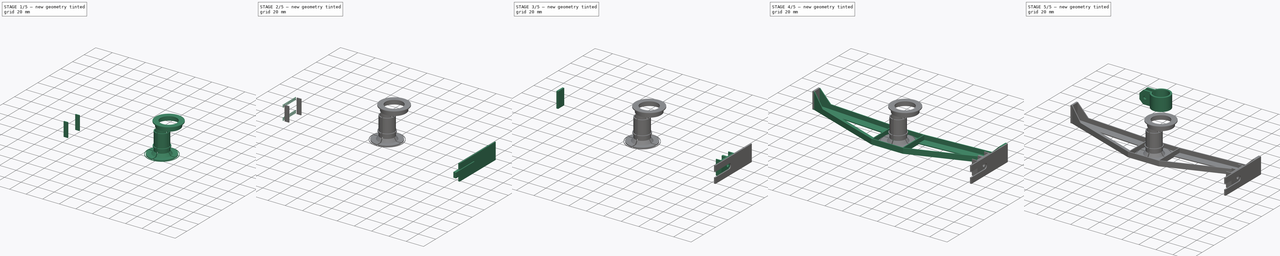
[diagram: build sequence overview — one tinted view per stage of 5, left to right]
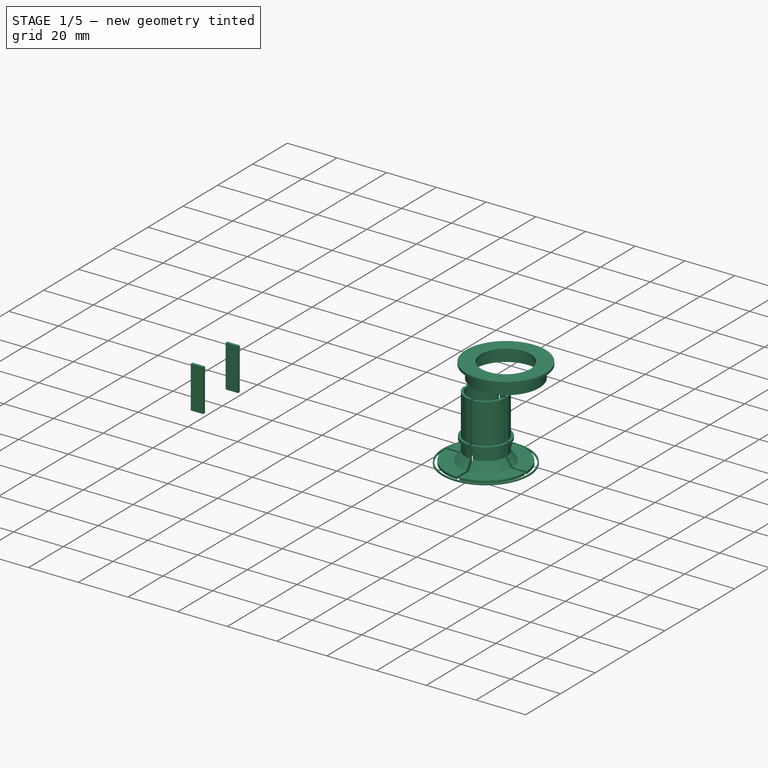
[diagram: stage 1 of 5 — iso view after this stage's code; geometry added in this stage tinted green]
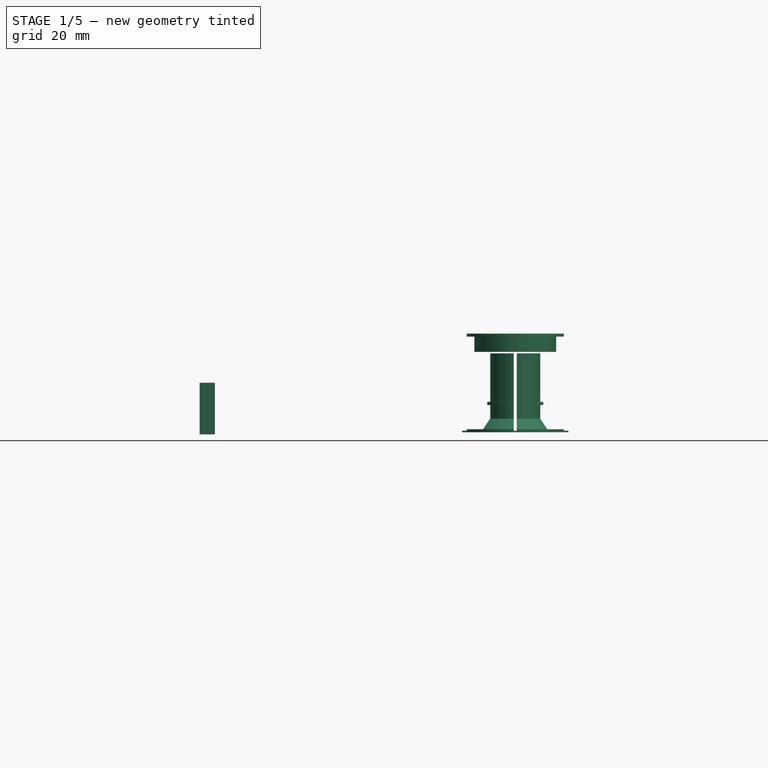
[diagram: stage 1 of 5 — front view after this stage's code; geometry added in this stage tinted green]
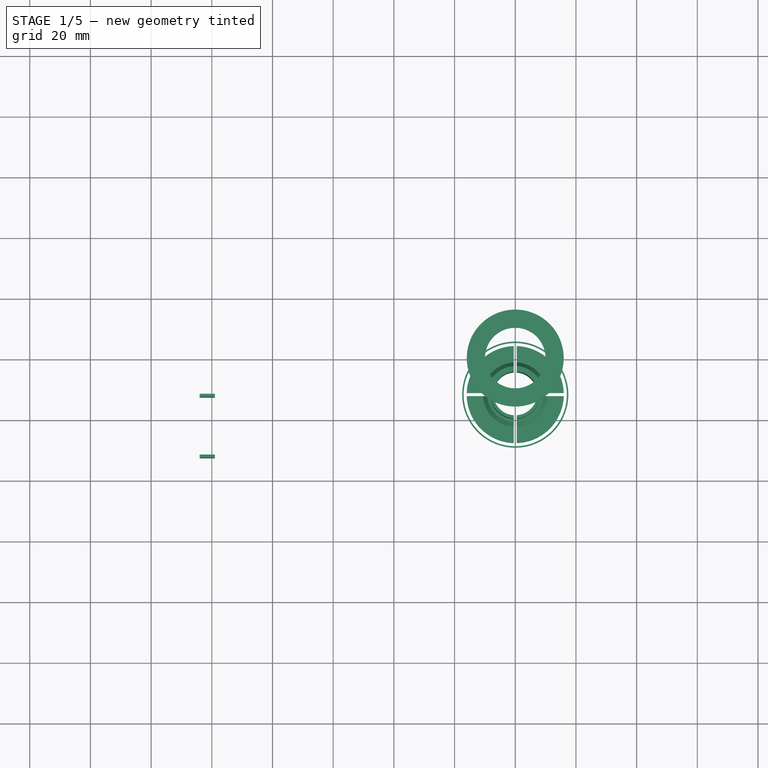
[diagram: stage 1 of 5 — top view after this stage's code; geometry added in this stage tinted green]
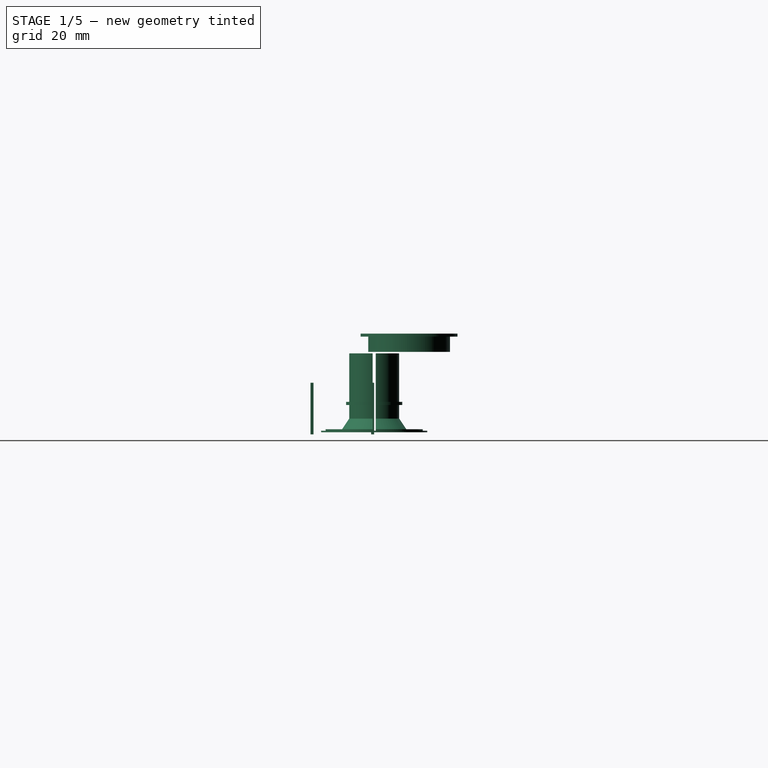
[diagram: stage 1 of 5 — right view after this stage's code; geometry added in this stage tinted green]
FCSTD DOCUMENT  (FreeCAD 0.19R24291 (Git))
Label: cam_static
License: All rights reserved
LicenseURL: http://en.wikipedia.org/wiki/All_rights_reserved
objects: Sketcher::SketchObject×19, Part::Extrusion×17, Part::Compound×6, PartDesign::FeatureBase×5, PartDesign::Body×5, Part::Mirroring×3, Part::Cut×3, Part::FeaturePython×3, Part::Cylinder×2, Part::MultiCommon×2, Part::Revolution×2, Spreadsheet::Sheet×1, Part::MultiFuse×1
note: 65 computed .brp shape members not serialized (recipe doc carries the construction recipe); baked Part::Feature solids carry a one-line shape summary decoded from their .brp

FEATURE [Sketcher::SketchObject] Sketch038
  FullyConstrained = true
  Placement = pos=(0,0,-9.2) rot=(0,0,1;0rad)
  sketch-geometry (8):
    g0: LineSegment StartX=-104 StartY=-11.5 StartZ=0 EndX=-99 EndY=-11.5 EndZ=0
    g1: LineSegment StartX=-99 StartY=-11.5 StartZ=0 EndX=-99 EndY=-12.5 EndZ=0
    g2: LineSegment StartX=-99 StartY=-12.5 StartZ=0 EndX=-104 EndY=-12.5 EndZ=0
    g3: LineSegment StartX=-104 StartY=-12.5 StartZ=0 EndX=-104 EndY=-11.5 EndZ=0
    g4: LineSegment StartX=-104 StartY=-32.5 StartZ=0 EndX=-99 EndY=-32.5 EndZ=0
    g5: LineSegment StartX=-99 StartY=-32.5 StartZ=0 EndX=-99 EndY=-31.5 EndZ=0
    g6: LineSegment StartX=-99 StartY=-31.5 StartZ=0 EndX=-104 EndY=-31.5 EndZ=0
    g7: LineSegment StartX=-104 StartY=-31.5 StartZ=0 EndX=-104 EndY=-32.5 EndZ=0
  constraints (24):
    c: Coincident(g0,g1)
    c: Coincident(g1,g2)
    c: Coincident(g2,g3)
    c: Coincident(g3,g0)
    c: Horizontal(g0)
    c: Horizontal(g2)
    c: Vertical(g1)
    c: Vertical(g3)
    c: Coincident(g4,g5)
    c: Coincident(g5,g6)
    c: Coincident(g6,g7)
    c: Coincident(g7,g4)
    c: Horizontal(g4)
    c: Horizontal(g6)
    c: Vertical(g5)
    c: Vertical(g7)
    c: DistanceY(g4) = -32.5
    c: DistanceY(g0) = -11.5
    c: DistanceX(g0) = -104
    c: Vertical(g6,g2)
    c: DistanceY(g1,g1) = 1
    c: DistanceY(g5,g5) = 1
    c: Vertical(g5,g1)
    c: DistanceX(g0,g0) = 5
FEATURE [Part::Extrusion] Extrude034
  Base = -> Sketch038
  Dir = (0,0,1)
  DirMode = 2
  FaceMakerClass = Part::FaceMakerBullseye
  LengthFwd = 0
  LengthRev = 17
  Solid = true
  Symmetric = false
FEATURE [Sketcher::SketchObject] Sketch012
  FullyConstrained = true
  Placement = pos=(0,0,-25.5) rot=(0,0,1;0rad)
  sketch-geometry (2):
    g0: Circle CenterX=0 CenterY=-11.5 CenterZ=0 NormalX=0 NormalY=0 NormalZ=1 AngleXU=0 Radius=17.5
    g1: Circle CenterX=0 CenterY=-11.5 CenterZ=0 NormalX=0 NormalY=0 NormalZ=1 AngleXU=0 Radius=17
  constraints (5):
    c: Radius(g1) = 17
    c: Radius(g0) = 17.5
    c: PointOnObject(g0,g-2)
    c: Coincident(g0,g1)
    c: DistanceY(g0) = -11.5
FEATURE [Part::Extrusion] Extrude035
  Base = -> Sketch012
  Dir = (0,0,1)
  DirMode = 2
  FaceMakerClass = Part::FaceMakerBullseye
  LengthFwd = 0.5
  LengthRev = 0
  Solid = true
  Symmetric = false
FEATURE [Sketcher::SketchObject] Sketch018
  FullyConstrained = true
  Placement = pos=(0,0,0) rot=(1,0,0;1.5708rad)
  sketch-geometry (11):
    g0: LineSegment StartX=7.25 StartY=26 StartZ=0 EndX=7.25 EndY=0 EndZ=0
    g1: LineSegment StartX=7.25 StartY=0 StartZ=0 EndX=16 EndY=0 EndZ=0
    g2: LineSegment StartX=16 StartY=0 StartZ=0 EndX=16 EndY=1 EndZ=0
    g3: LineSegment StartX=16 StartY=1 StartZ=0 EndX=10.6 EndY=1 EndZ=0
    g4: LineSegment StartX=10.6 StartY=1 StartZ=0 EndX=8.25 EndY=4.5 EndZ=0
    g5: LineSegment StartX=8.25 StartY=4.5 StartZ=0 EndX=8.25 EndY=9 EndZ=0
    g6: LineSegment StartX=8.25 StartY=9 StartZ=0 EndX=9.25 EndY=9 EndZ=0
    g7: LineSegment StartX=9.25 StartY=9 StartZ=0 EndX=9.25 EndY=10 EndZ=0
    g8: LineSegment StartX=9.25 StartY=10 StartZ=0 EndX=8.25 EndY=10 EndZ=0
    g9: LineSegment StartX=8.25 StartY=10 StartZ=0 EndX=8.25 EndY=26 EndZ=0
    g10: LineSegment StartX=8.25 StartY=26 StartZ=0 EndX=7.25 EndY=26 EndZ=0
  constraints (33):
    c: Vertical(g0)
    c: Coincident(g0,g1)
    c: Horizontal(g1)
    c: Coincident(g1,g2)
    c: Vertical(g2)
    c: Coincident(g2,g3)
    c: Horizontal(g3)
    c: Coincident(g3,g4)
    c: Coincident(g4,g5)
    c: Vertical(g5)
    c: Coincident(g5,g6)
    c: Horizontal(g6)
    c: Coincident(g6,g7)
    c: Vertical(g7)
    c: Coincident(g7,g8)
    c: Horizontal(g8)
    c: Coincident(g8,g9)
    c: Vertical(g9)
    c: Coincident(g9,g10)
    c: Coincident(g10,g0)
    c: Horizontal(g10)
    c: DistanceX(g0) = 7.25
    c: DistanceY(g0,g0) = 26
    c: DistanceX(g10,g10) = 1
    c: Vertical(g8,g5)
    c: DistanceY(g0,g5) = 9
    c: DistanceY(g2,g2) = 1
    c: DistanceX(g1) = 16
    c: DistanceX(g6,g6) = 1
    c: DistanceY(g7,g7) = 1
    c: DistanceX(g3) = 10.6
    c: DistanceY(g0,g4) = 4.5
    c: PointOnObject(g0,g-1)
FEATURE [Part::Revolution] Revolve
  Angle = 360
  Axis = (0,0,1)
  Base = (0,0,0)
  FaceMakerClass = Part::FaceMakerBullseye
  Solid = true
  Source = -> Sketch018
  Symmetric = false
FEATURE [Sketcher::SketchObject] Sketch039
  FullyConstrained = true
  Placement = pos=(0,0,-1) rot=(0,0,1;0rad)
  sketch-geometry (4):
    g0: LineSegment StartX=0.5 StartY=0.5 StartZ=0 EndX=18 EndY=0.5 EndZ=0
    g1: LineSegment StartX=18 StartY=0.5 StartZ=0 EndX=18 EndY=18 EndZ=0
    g2: LineSegment StartX=18 StartY=18 StartZ=0 EndX=0.5 EndY=18 EndZ=0
    g3: LineSegment StartX=0.5 StartY=18 StartZ=0 EndX=0.5 EndY=0.5 EndZ=0
  constraints (12):
    c: Coincident(g0,g1)
    c: Coincident(g1,g2)
    c: Coincident(g2,g3)
    c: Coincident(g3,g0)
    c: Horizontal(g0)
    c: Horizontal(g2)
    c: Vertical(g1)
    c: Vertical(g3)
    c: DistanceY(g0) = 0.5
    c: DistanceX(g0) = 0.5
    c: DistanceX(g0) = 18
    c: DistanceY(g2) = 18
FEATURE [Part::Extrusion] Extrude036
  Base = -> Sketch039
  Dir = (0,0,1)
  DirMode = 2
  FaceMakerClass = Part::FaceMakerBullseye
  LengthFwd = 28
  LengthRev = 0
  Solid = true
  Symmetric = false
FEATURE [Part::MultiCommon] Common  label="cf clamp"
  Shapes = -> [Extrude036,Revolve]
FEATURE [Sketcher::SketchObject] Sketch
  FullyConstrained = false
  Placement = pos=(0,0,0) rot=(1,0,0;1.5708rad)
  sketch-geometry (8):
    g0: LineSegment StartX=12.4749 StartY=1 StartZ=0 EndX=12.4749 EndY=6 EndZ=0
    g1: LineSegment StartX=12.4749 StartY=6 StartZ=0 EndX=9.97493 EndY=6 EndZ=0
    g2: LineSegment StartX=9.97493 StartY=6 StartZ=0 EndX=9.97493 EndY=7 EndZ=0
    g3: LineSegment StartX=9.97493 StartY=7 StartZ=0 EndX=15.9749 EndY=7 EndZ=0
    g4: LineSegment StartX=15.9749 StartY=7 StartZ=0 EndX=15.9749 EndY=6 EndZ=0
    g5: LineSegment StartX=15.9749 StartY=6 StartZ=0 EndX=13.4749 EndY=6 EndZ=0
    g6: LineSegment StartX=13.4749 StartY=6 StartZ=0 EndX=13.4749 EndY=1 EndZ=0
    g7: LineSegment StartX=13.4749 StartY=1 StartZ=0 EndX=12.4749 EndY=1 EndZ=0
  constraints (21):
    c: Vertical(g0)
    c: Coincident(g0,g1)
    c: Horizontal(g1)
    c: Coincident(g1,g2)
    c: Vertical(g2)
    c: Coincident(g2,g3)
    c: Horizontal(g3)
    c: Coincident(g3,g4)
    c: Vertical(g4)
    c: Coincident(g4,g5)
    c: Horizontal(g5)
    c: Coincident(g5,g6)
    c: Vertical(g6)
    c: Coincident(g6,g7)
    c: Coincident(g7,g0)
    c: Horizontal(g7)
    c: DistanceX(g7,g7) = 1
    c: DistanceX(g5,g5) = 2.5
    c: DistanceX(g1,g1) = 2.5
    c: DistanceY(g4,g4) = 1
    c: DistanceY(g6,g6) = 5
FEATURE [Part::Revolution] Revolve001  label="jig001"
  Angle = 360
  Axis = (0,0,1)
  Base = (0,0,0)
  FaceMakerClass = Part::FaceMakerBullseye
  Solid = true
  Source = -> Sketch
  Symmetric = false
FEATURE [PartDesign::FeatureBase] Clone012
  BaseFeature = -> Revolve001
FEATURE [PartDesign::Body] Body012  label="jig"
  BaseFeature = -> Revolve001
  Group = -> [Clone012]
  Origin = -> Origin012
  Placement = pos=(0,-11.5,-25.5) rot=(0,0,1;0rad)
  Tip = -> Clone012
FEATURE [PartDesign::FeatureBase] Clone
  BaseFeature = -> Common
FEATURE [PartDesign::Body] Body
  BaseFeature = -> Common
  Group = -> [Clone]
  Origin = -> Origin
  Tip = -> Clone
FEATURE [Part::FeaturePython] Array  label="cf mockup"  # Draft array (typed FeaturePython)
  Angle = 360
  ArrayType = 1
  Axis = (0,0,1)
  Base = -> Body
  Center = (0,0,0)
  Count = 4
  ExpandArray = false
  Fuse = false
  IntervalAxis = (0,0,0)
  IntervalX = (100,0,0)
  IntervalY = (0,100,0)
  IntervalZ = (0,0,100)
  NumberCircles = 3
  NumberPolar = 4
  NumberX = 2
  NumberY = 2
  NumberZ = 1
  Placement = pos=(0,-11.5,-25.5) rot=(0,0,1;0rad)
  PlacementList = 4 placements: [(0,0,0),(0,0,0),(0,0,0),(0,0,0)]
  RadialDistance = 50
  ScaleList = (4) [(1,1,1),(1,1,1),(1,1,1),(1,1,1)]
  Symmetry = 1
  TangentialDistance = 25
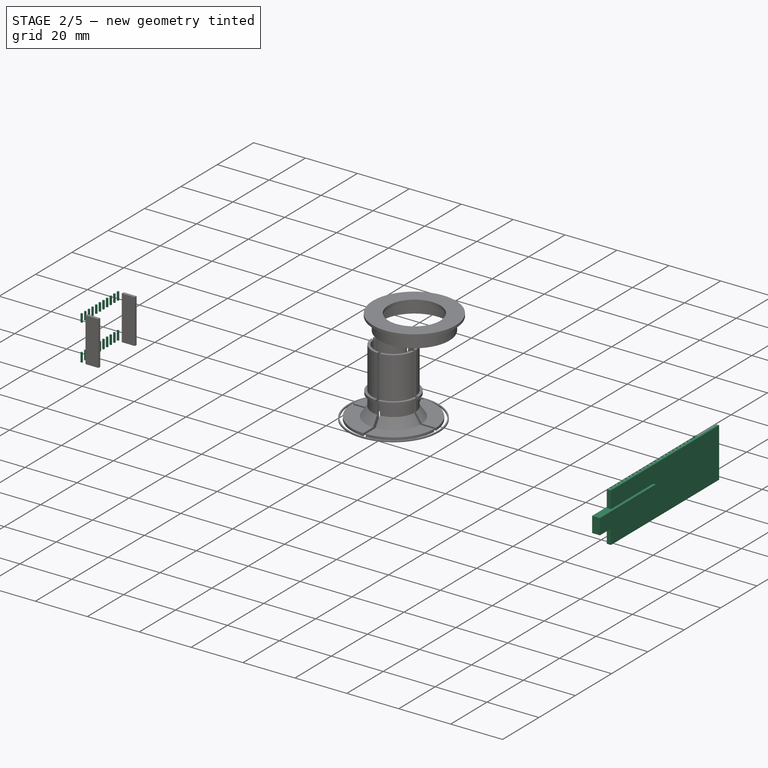
[diagram: stage 2 of 5 — iso view after this stage's code; geometry added in this stage tinted green]
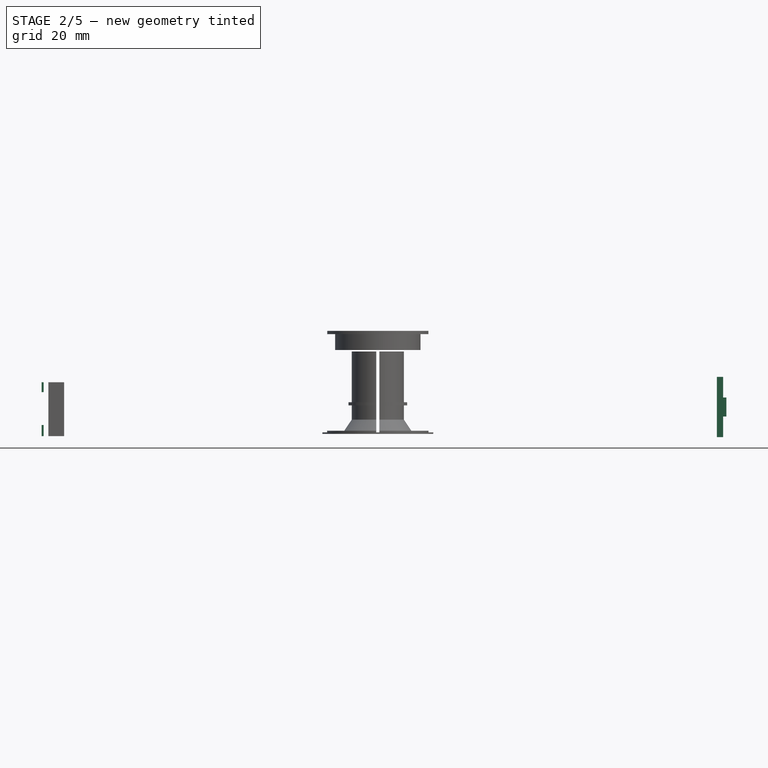
[diagram: stage 2 of 5 — front view after this stage's code; geometry added in this stage tinted green]
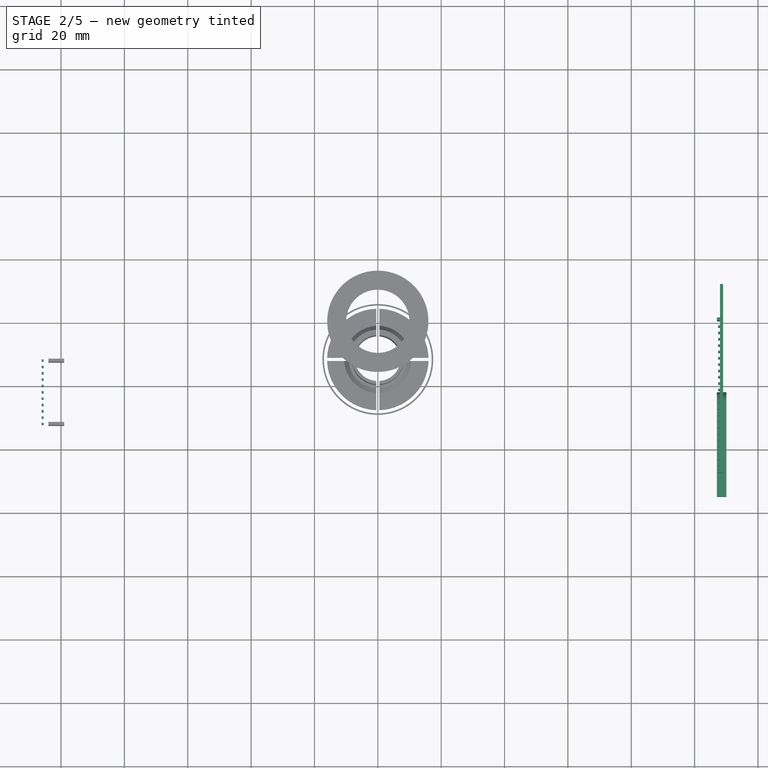
[diagram: stage 2 of 5 — top view after this stage's code; geometry added in this stage tinted green]
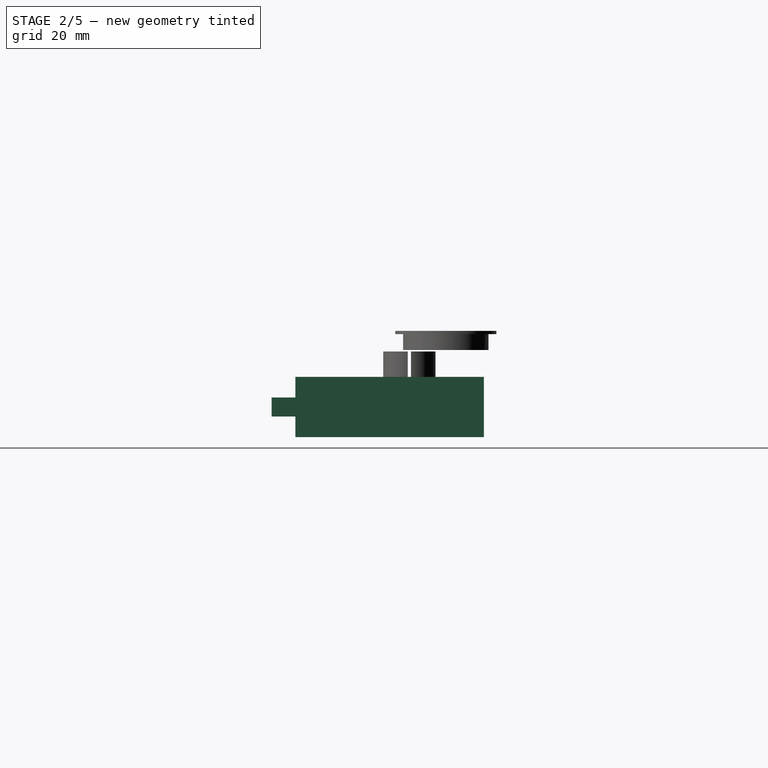
[diagram: stage 2 of 5 — right view after this stage's code; geometry added in this stage tinted green]
FEATURE [Sketcher::SketchObject] Sketch033
  FullyConstrained = true
  Placement = pos=(0,0,-7.5) rot=(0,0,1;0rad)
  sketch-geometry (8):
    g0: LineSegment StartX=108 StartY=12 StartZ=0 EndX=108 EndY=1.49 EndZ=0
    g1: LineSegment StartX=108 StartY=1.49 StartZ=0 EndX=107 EndY=1.49 EndZ=0
    g2: LineSegment StartX=107 StartY=1.49 StartZ=0 EndX=107 EndY=0.49 EndZ=0
    g3: LineSegment StartX=107 StartY=0.49 StartZ=0 EndX=108 EndY=0.49 EndZ=0
    g4: LineSegment StartX=108 StartY=0.49 StartZ=0 EndX=108 EndY=-47.5 EndZ=0
    g5: LineSegment StartX=108 StartY=-47.5 StartZ=0 EndX=109 EndY=-47.5 EndZ=0
    g6: LineSegment StartX=109 StartY=-47.5 StartZ=0 EndX=109 EndY=12 EndZ=0
    g7: LineSegment StartX=109 StartY=12 StartZ=0 EndX=108 EndY=12 EndZ=0
  constraints (24):
    c: Vertical(g0)
    c: Coincident(g0,g1)
    c: Horizontal(g1)
    c: Coincident(g1,g2)
    c: Vertical(g2)
    c: Coincident(g2,g3)
    c: Horizontal(g3)
    c: Coincident(g3,g4)
    c: Vertical(g4)
    c: Coincident(g4,g5)
    c: Horizontal(g5)
    c: Coincident(g5,g6)
    c: Vertical(g6)
    c: Coincident(g6,g7)
    c: Coincident(g7,g0)
    c: Horizontal(g7)
    c: DistanceX(g6) = 109
    c: DistanceX(g7,g7) = 1
    c: DistanceY(g6) = 12
    c: DistanceY(g0,g0) = 10.51
    c: DistanceY(g2,g2) = 1
    c: DistanceX(g3,g3) = 1
    c: Vertical(g3,g0)
    c: DistanceY(g6,g6) = 59.5
FEATURE [Part::Extrusion] Extrude029
  Base = -> Sketch033
  Dir = (0,0,1)
  DirMode = 2
  FaceMakerClass = Part::FaceMakerBullseye
  LengthFwd = 0
  LengthRev = 19
  Solid = true
  Symmetric = false
FEATURE [Sketcher::SketchObject] Sketch034
  FullyConstrained = true
  Placement = pos=(0,0,-7.5) rot=(0,0,1;0rad)
  sketch-geometry (4):
    g0: LineSegment StartX=108 StartY=-1 StartZ=0 EndX=107.4 EndY=-1 EndZ=0
    g1: LineSegment StartX=107.4 StartY=-1 StartZ=0 EndX=107.4 EndY=-1.5 EndZ=0
    g2: LineSegment StartX=107.4 StartY=-1.5 StartZ=0 EndX=108 EndY=-1.5 EndZ=0
    g3: LineSegment StartX=108 StartY=-1.5 StartZ=0 EndX=108 EndY=-1 EndZ=0
  constraints (12):
    c: Coincident(g0,g1)
    c: Coincident(g1,g2)
    c: Coincident(g2,g3)
    c: Coincident(g3,g0)
    c: Horizontal(g0)
    c: Horizontal(g2)
    c: Vertical(g1)
    c: Vertical(g3)
    c: DistanceX(g0) = 108
    c: DistanceX(g0,g0) = 0.6
    c: DistanceY(g3,g3) = 0.5
    c: DistanceY(g0) = -1
FEATURE [Part::Extrusion] Extrude030
  Base = -> Sketch034
  Dir = (0,0,1)
  DirMode = 2
  FaceMakerClass = Part::FaceMakerBullseye
  LengthFwd = 0
  LengthRev = 19
  Solid = true
  Symmetric = false
FEATURE [Part::FeaturePython] Array002  # Draft array (typed FeaturePython)
  Angle = 360
  ArrayType = 0
  Axis = (0,0,1)
  Base = -> Extrude030
  Center = (0,0,0)
  Count = 24
  ExpandArray = false
  Fuse = false
  IntervalAxis = (0,0,0)
  IntervalX = (100,0,0)
  IntervalY = (0,-2,0)
  IntervalZ = (0,0,100)
  NumberCircles = 3
  NumberPolar = 5
  NumberX = 1
  NumberY = 24
  NumberZ = 1
  PlacementList = 24 placements: arithmetic series from (0,0,0) step (0,-2,0) to (0,-46,0)
  RadialDistance = 50
  ScaleList = (24) [(1,1,1),(1,1,1),(1,1,1),(1,1,1),(1,1,1),(1,1,1),(1,1,1),(1,1,1),(1,1,1),(1,1,1),(1,1,1),(1,1,1),(1,1,1),(1,1,1),(1,1,1),(1,1,1),(1,1,1),(1,1,1),+6 more]
  Symmetry = 1
  TangentialDistance = 25
FEATURE [Part::Compound] Compound009
  Links = -> [Array002,Extrude029]
FEATURE [Sketcher::SketchObject] Sketch035
  FullyConstrained = true
  Placement = pos=(110,0,0) rot=(0.57735,0.57735,0.57735;2.0944rad)
  sketch-geometry (4):
    g0: ArcOfCircle CenterX=-25 CenterY=-17 CenterZ=0 NormalX=0 NormalY=0 NormalZ=1 AngleXU=0 Radius=3 StartAngle=4.71239 EndAngle=7.85398
    g1: LineSegment StartX=-55 StartY=-20 StartZ=0 EndX=-25 EndY=-20 EndZ=0
    g2: LineSegment StartX=-55 StartY=-14 StartZ=0 EndX=-25 EndY=-14 EndZ=0
    g3: LineSegment StartX=-55 StartY=-14 StartZ=0 EndX=-55 EndY=-20 EndZ=0
  constraints (13):
    c: Vertical(g0,g0)
    c: Vertical(g0,g0)
    c: Radius(g0) = 3
    c: DistanceY(g0) = -17
    c: Coincident(g1,g0)
    c: Horizontal(g1)
    c: Coincident(g2,g0)
    c: Horizontal(g2)
    c: DistanceX(g0) = -25
    c: DistanceX(g2) = -55
    c: Coincident(g3,g2)
    c: Coincident(g3,g1)
    c: Vertical(g3)
FEATURE [Part::Extrusion] Extrude031  label="side fork002"
  Base = -> Sketch035
  Dir = (1,-2e-16,2e-16)
  DirMode = 2
  FaceMakerClass = Part::FaceMakerBullseye
  LengthFwd = 0
  LengthRev = 3
  Solid = true
  Symmetric = false
FEATURE [Sketcher::SketchObject] Sketch036
  FullyConstrained = true
  Placement = pos=(0,0,-9.2) rot=(0,0,1;0rad)
  sketch-geometry (4):
    g0: LineSegment StartX=-105.5 StartY=-11.75 StartZ=0 EndX=-106.1 EndY=-11.75 EndZ=0
    g1: LineSegment StartX=-106.1 StartY=-11.75 StartZ=0 EndX=-106.1 EndY=-12.25 EndZ=0
    g2: LineSegment StartX=-106.1 StartY=-12.25 StartZ=0 EndX=-105.5 EndY=-12.25 EndZ=0
    g3: LineSegment StartX=-105.5 StartY=-12.25 StartZ=0 EndX=-105.5 EndY=-11.75 EndZ=0
  constraints (12):
    c: Coincident(g0,g1)
    c: Coincident(g1,g2)
    c: Coincident(g2,g3)
    c: Coincident(g3,g0)
    c: Horizontal(g0)
    c: Horizontal(g2)
    c: Vertical(g1)
    c: Vertical(g3)
    c: DistanceX(g0,g0) = 0.6
    c: DistanceY(g3,g3) = 0.5
    c: DistanceX(g0) = -105.5
    c: DistanceY(g0) = -11.75
FEATURE [Part::Extrusion] Extrude032
  Base = -> Sketch036
  Dir = (0,0,1)
  DirMode = 2
  FaceMakerClass = Part::FaceMakerBullseye
  LengthFwd = 0
  LengthRev = 17
  Solid = true
  Symmetric = false
FEATURE [Part::FeaturePython] Array003  # Draft array (typed FeaturePython)
  Angle = 360
  ArrayType = 0
  Axis = (0,0,1)
  Base = -> Extrude032
  Center = (0,0,0)
  Count = 11
  ExpandArray = false
  Fuse = false
  IntervalAxis = (0,0,0)
  IntervalX = (100,0,0)
  IntervalY = (0,-2,0)
  IntervalZ = (0,0,100)
  NumberCircles = 3
  NumberPolar = 5
  NumberX = 1
  NumberY = 11
  NumberZ = 1
  PlacementList = 11 placements: arithmetic series from (0,0,0) step (0,-2,0) to (0,-20,0)
  RadialDistance = 50
  ScaleList = (11) [(1,1,1),(1,1,1),(1,1,1),(1,1,1),(1,1,1),(1,1,1),(1,1,1),(1,1,1),(1,1,1),(1,1,1),(1,1,1)]
  Symmetry = 1
  TangentialDistance = 25
FEATURE [Sketcher::SketchObject] Sketch037
  FullyConstrained = true
  Placement = pos=(-107.5,-22,-15) rot=(0.57735,-0.57735,-0.57735;2.0944rad)
  sketch-geometry (4):
    g0: LineSegment StartX=-12 StartY=2.7 StartZ=0 EndX=12 EndY=2.7 EndZ=0
    g1: LineSegment StartX=12 StartY=2.7 StartZ=0 EndX=12 EndY=-7.7 EndZ=0
    g2: LineSegment StartX=12 StartY=-7.7 StartZ=0 EndX=-12 EndY=-7.7 EndZ=0
    g3: LineSegment StartX=-12 StartY=-7.7 StartZ=0 EndX=-12 EndY=2.7 EndZ=0
  constraints (12):
    c: Coincident(g0,g1)
    c: Coincident(g1,g2)
    c: Coincident(g2,g3)
    c: Coincident(g3,g0)
    c: Horizontal(g0)
    c: Horizontal(g2)
    c: Vertical(g1)
    c: Vertical(g3)
    c: DistanceY(g1) = -7.7
    c: DistanceY(g0) = 2.7
    c: DistanceX(g0) = 12
    c: DistanceX(g0) = -12
FEATURE [Part::Extrusion] Extrude033
  Base = -> Sketch037
  Dir = (-1,-7e-16,7e-16)
  DirMode = 2
  FaceMakerClass = Part::FaceMakerBullseye
  LengthFwd = 0
  LengthRev = 3.5
  Solid = true
  Symmetric = false
FEATURE [Part::Cut] Cut005
  Base = -> Array003
  Tool = -> Extrude033
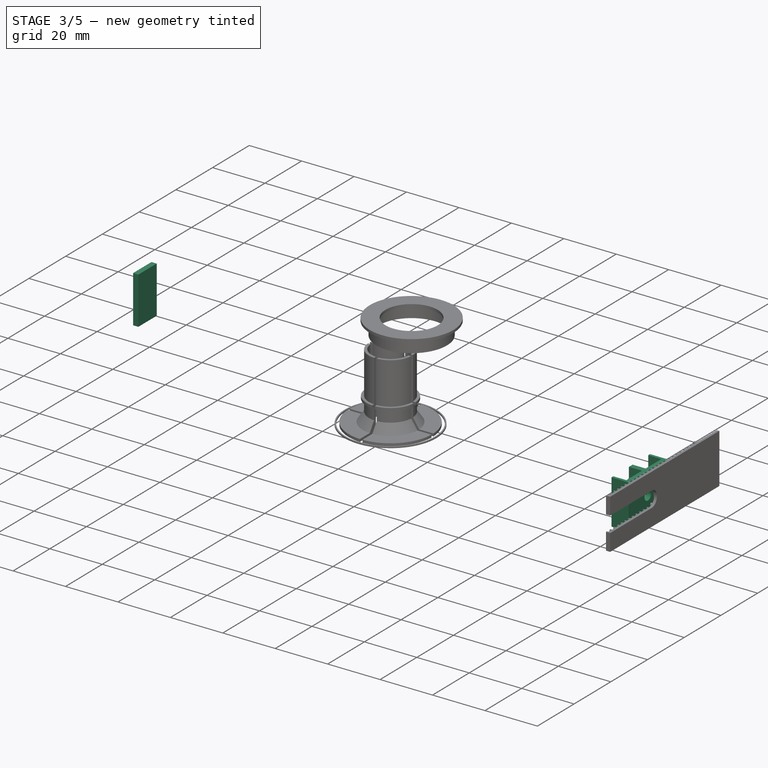
[diagram: stage 3 of 5 — iso view after this stage's code; geometry added in this stage tinted green]
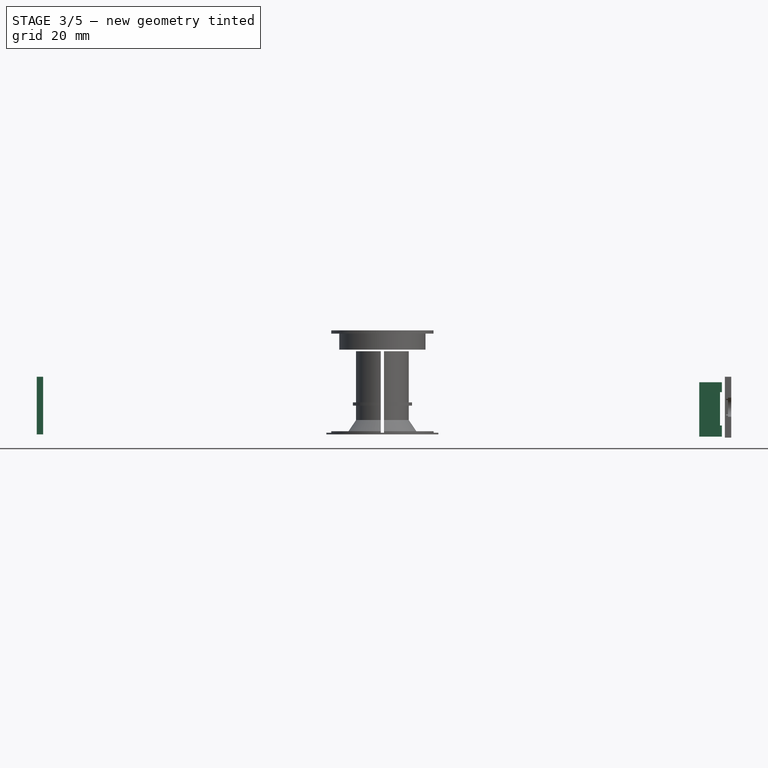
[diagram: stage 3 of 5 — front view after this stage's code; geometry added in this stage tinted green]
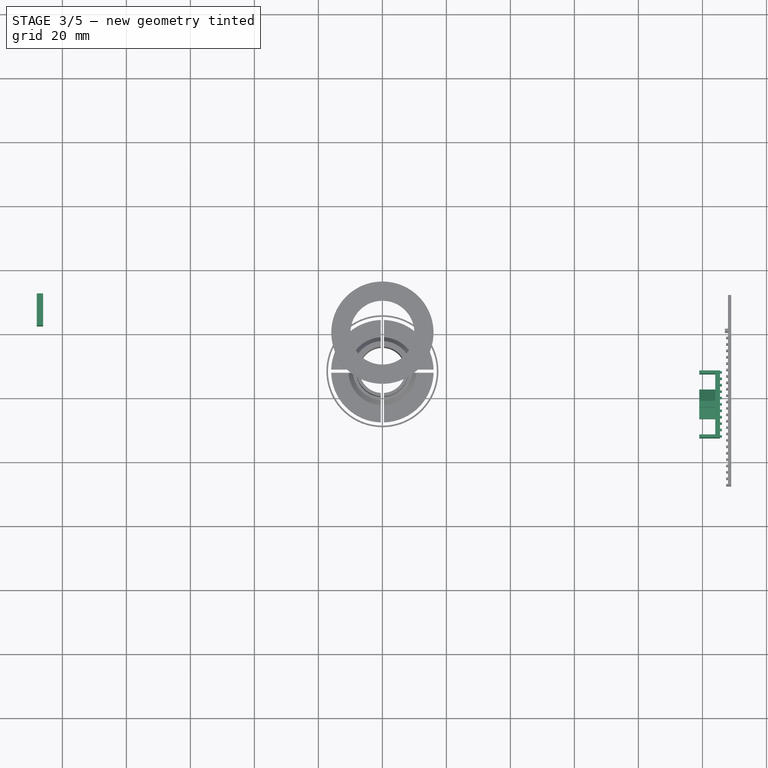
[diagram: stage 3 of 5 — top view after this stage's code; geometry added in this stage tinted green]
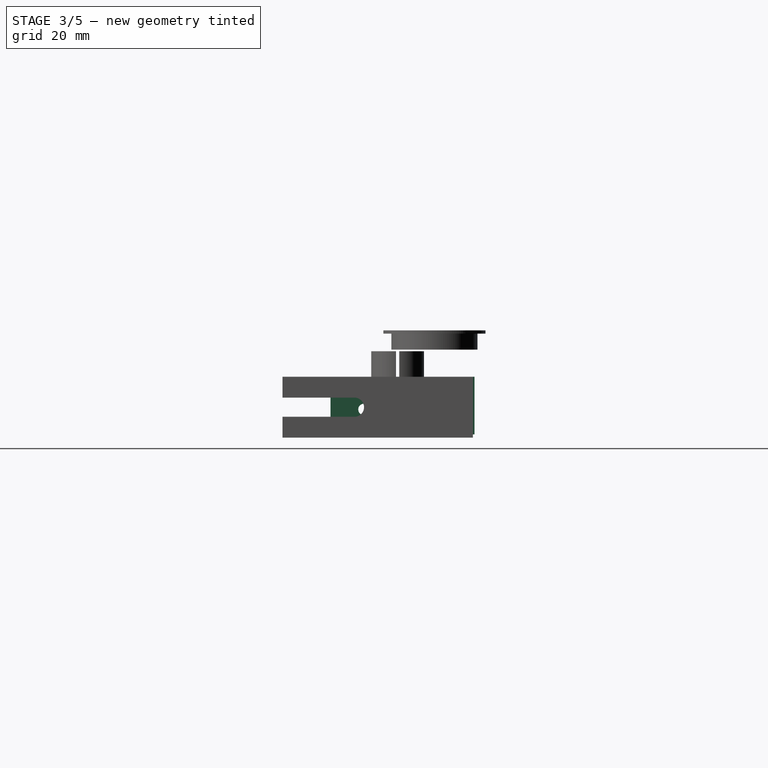
[diagram: stage 3 of 5 — right view after this stage's code; geometry added in this stage tinted green]
FEATURE [Sketcher::SketchObject] Sketch027
  FullyConstrained = true
  Placement = pos=(-104,-22,-17.7) rot=(0.57735,-0.57735,-0.57735;2.0944rad)
  expr: Constraints[37] = Spreadsheet.r3_4_40 + 1.5
  expr: Constraints[36] = Spreadsheet.r3_4_40
  sketch-geometry (14):
    g0: LineSegment StartX=3.2909 StartY=-1.9 StartZ=0 EndX=3.2909 EndY=1.9 EndZ=0
    g1: LineSegment StartX=3.2909 StartY=1.9 StartZ=0 EndX=4e-16 EndY=3.8 EndZ=0
    g2: LineSegment StartX=4e-16 StartY=3.8 StartZ=0 EndX=-3.2909 EndY=1.9 EndZ=0
    g3: LineSegment StartX=-3.2909 StartY=1.9 StartZ=0 EndX=-3.2909 EndY=-1.9 EndZ=0
    g4: LineSegment StartX=-3.2909 StartY=-1.9 StartZ=0 EndX=0 EndY=-3.8 EndZ=0
    g5: LineSegment StartX=0 StartY=-3.8 StartZ=0 EndX=3.2909 EndY=-1.9 EndZ=0
    g6: Circle CenterX=0 CenterY=0 CenterZ=0 NormalX=0 NormalY=0 NormalZ=1 AngleXU=0 Radius=3.8
    g7: LineSegment StartX=4.58993 StartY=-2.65 StartZ=0 EndX=4.58993 EndY=2.65 EndZ=0
    g8: LineSegment StartX=4.58993 StartY=2.65 StartZ=0 EndX=9e-16 EndY=5.3 EndZ=0
    g9: LineSegment StartX=9e-16 StartY=5.3 StartZ=0 EndX=-4.58993 EndY=2.65 EndZ=0
    g10: LineSegment StartX=-4.58993 StartY=2.65 StartZ=0 EndX=-4.58993 EndY=-2.65 EndZ=0
    g11: LineSegment StartX=-4.58993 StartY=-2.65 StartZ=0 EndX=0 EndY=-5.3 EndZ=0
    g12: LineSegment StartX=0 StartY=-5.3 StartZ=0 EndX=4.58993 EndY=-2.65 EndZ=0
    g13: Circle CenterX=0 CenterY=0 CenterZ=0 NormalX=0 NormalY=0 NormalZ=1 AngleXU=0 Radius=5.3
  constraints (32):
    c: Coincident(g0,g1)
    c: Coincident(g1,g2)
    c: Coincident(g2,g3)
    c: Coincident(g3,g4)
    c: Coincident(g4,g5)
    c: Coincident(g5,g0)
    c: Equal(g0, g1-g5) x5
    c: PointOnObject(g0,g6)
    c: PointOnObject(g1,g6)
    c: PointOnObject(g2,g6)
    c: PointOnObject(g3,g6)
    c: PointOnObject(g4,g6)
    c: PointOnObject(g5,g6)
    c: Coincident(g6,g-1)
    c: Coincident(g7,g8)
    c: Coincident(g8,g9)
    c: Coincident(g9,g10)
    c: Coincident(g10,g11)
    c: Coincident(g11,g12)
    c: Coincident(g12,g7)
    c: Equal(g7, g8-g12) x5
    c: PointOnObject(g7,g13)
    c: PointOnObject(g8,g13)
    c: PointOnObject(g9,g13)
    c: PointOnObject(g10,g13)
    c: PointOnObject(g11,g13)
    c: PointOnObject(g12,g13)
    c: Coincident(g13,g-1)
    c: Radius(g6) = 3.8
    c: Radius(g13) = 5.3
    c: Vertical(g7)
    c: Vertical(g0)
FEATURE [Part::Extrusion] Extrude023
  Base = -> Sketch027
  Dir = (-1,2e-16,-2e-16)
  DirMode = 2
  FaceMakerClass = Part::FaceMakerBullseye
  LengthFwd = 0
  LengthRev = 5
  Solid = true
  Symmetric = false
FEATURE [Sketcher::SketchObject] Sketch028
  FullyConstrained = true
  Placement = pos=(-105.5,-22,-15) rot=(0.57735,-0.57735,-0.57735;2.0944rad)
  expr: Constraints[1] = Spreadsheet.r_4_40
  sketch-geometry (5):
    g0: Circle CenterX=0 CenterY=-2.7 CenterZ=0 NormalX=0 NormalY=0 NormalZ=1 AngleXU=0 Radius=1.8
    g1: LineSegment StartX=-10.5 StartY=5.8 StartZ=0 EndX=10.5 EndY=5.8 EndZ=0
    g2: LineSegment StartX=10.5 StartY=5.8 StartZ=0 EndX=10.5 EndY=-11.2 EndZ=0
    g3: LineSegment StartX=10.5 StartY=-11.2 StartZ=0 EndX=-10.5 EndY=-11.2 EndZ=0
    g4: LineSegment StartX=-10.5 StartY=-11.2 StartZ=0 EndX=-10.5 EndY=5.8 EndZ=0
  constraints (15):
    c: PointOnObject(g0,g-2)
    c: Radius(g0) = 1.8
    c: Coincident(g1,g2)
    c: Coincident(g2,g3)
    c: Coincident(g3,g4)
    c: Coincident(g4,g1)
    c: Horizontal(g1)
    c: Horizontal(g3)
    c: Vertical(g2)
    c: Vertical(g4)
    c: DistanceX(g1) = 10.5
    c: DistanceX(g1,g1) = 21
    c: DistanceY(g0,g1) = 8.5
    c: DistanceY(g3,g0) = 8.5
    c: DistanceY(g0) = -2.7
FEATURE [Part::Extrusion] Extrude024
  Base = -> Sketch028
  Dir = (-1,-2e-16,2e-16)
  DirMode = 2
  FaceMakerClass = Part::FaceMakerBullseye
  LengthFwd = 0
  LengthRev = 1.5
  Solid = true
  Symmetric = false
FEATURE [Sketcher::SketchObject] Sketch030
  FullyConstrained = true
  Placement = pos=(0,-22,0) rot=(1,0,0;1.5708rad)
  sketch-geometry (8):
    g0: LineSegment StartX=-104 StartY=-26.2 StartZ=0 EndX=-104 EndY=-22 EndZ=0
    g1: LineSegment StartX=-104 StartY=-22 StartZ=0 EndX=-99 EndY=-22 EndZ=0
    g2: LineSegment StartX=-99 StartY=-22 StartZ=0 EndX=-99 EndY=-26.2 EndZ=0
    g3: LineSegment StartX=-99 StartY=-26.2 StartZ=0 EndX=-104 EndY=-26.2 EndZ=0
    g4: LineSegment StartX=-99 StartY=-13.5 StartZ=0 EndX=-104 EndY=-13.5 EndZ=0
    g5: LineSegment StartX=-104 StartY=-13.5 StartZ=0 EndX=-104 EndY=-9.2 EndZ=0
    g6: LineSegment StartX=-104 StartY=-9.2 StartZ=0 EndX=-99 EndY=-9.2 EndZ=0
    g7: LineSegment StartX=-99 StartY=-9.2 StartZ=0 EndX=-99 EndY=-13.5 EndZ=0
  constraints (24):
    c: Vertical(g0)
    c: Coincident(g0,g1)
    c: Horizontal(g1)
    c: Coincident(g1,g2)
    c: Vertical(g2)
    c: Coincident(g3,g0)
    c: Horizontal(g3)
    c: DistanceX(g1,g1) = 5
    c: DistanceX(g0) = -104
    c: Coincident(g2,g3)
    c: Coincident(g4,g5)
    c: Coincident(g5,g6)
    c: Coincident(g6,g7)
    c: Coincident(g7,g4)
    c: Horizontal(g4)
    c: Horizontal(g6)
    c: Vertical(g5)
    c: Vertical(g7)
    c: Vertical(g4,g0)
    c: Vertical(g1,g4)
    c: DistanceY(g6) = -9.2
    c: DistanceY(g0) = -22
    c: DistanceY(g0) = -26.2
    c: DistanceY(g4) = -13.5
FEATURE [Part::Extrusion] Extrude026
  Base = -> Sketch030
  Dir = (0,-1,2e-16)
  DirMode = 2
  FaceMakerClass = Part::FaceMakerBullseye
  LengthFwd = 1
  LengthRev = 1
  Solid = true
  Symmetric = false
FEATURE [Sketcher::SketchObject] Sketch032
  FullyConstrained = true
  Placement = pos=(0,0,-25.5) rot=(0,0,1;0rad)
  sketch-geometry (4):
    g0: LineSegment StartX=-108 StartY=12.5 StartZ=0 EndX=-108 EndY=2.5 EndZ=0
    g1: LineSegment StartX=-106 StartY=2.5 StartZ=0 EndX=-106 EndY=12.5 EndZ=0
    g2: LineSegment StartX=-106 StartY=12.5 StartZ=0 EndX=-108 EndY=12.5 EndZ=0
    g3: LineSegment StartX=-108 StartY=2.5 StartZ=0 EndX=-106 EndY=2.5 EndZ=0
  constraints (12):
    c: Vertical(g0)
    c: Vertical(g1)
    c: Coincident(g1,g2)
    c: Coincident(g2,g0)
    c: Horizontal(g2)
    c: DistanceY(g0) = 12.5
    c: DistanceX(g0) = -108
    c: DistanceY(g0,g0) = 10
    c: DistanceX(g2,g2) = 2
    c: Coincident(g3,g1)
    c: Horizontal(g3)
    c: Coincident(g0,g3)
FEATURE [Part::Extrusion] Extrude028
  Base = -> Sketch032
  Dir = (0,0,1)
  DirMode = 2
  FaceMakerClass = Part::FaceMakerBullseye
  LengthFwd = 18
  LengthRev = 0
  Solid = true
  Symmetric = false
FEATURE [Part::Cut] Cut004  label="side fork003"
  Base = -> Compound009
  Tool = -> Extrude031
FEATURE [Part::Compound] Compound007  label="track farstener"
  Links = -> [Extrude023,Extrude024,Extrude026,Cut005,Extrude034]
FEATURE [PartDesign::FeatureBase] Clone011
  BaseFeature = -> Compound007
FEATURE [PartDesign::Body] Body011
  BaseFeature = -> Compound007
  Group = -> [Clone011]
  Origin = -> Origin011
  Tip = -> Clone011
FEATURE [Part::Mirroring] Part__Mirroring011  label="track farstener001"
  Base = (0,0,0)
  Normal = (1,0,0)
  Source = -> Body011
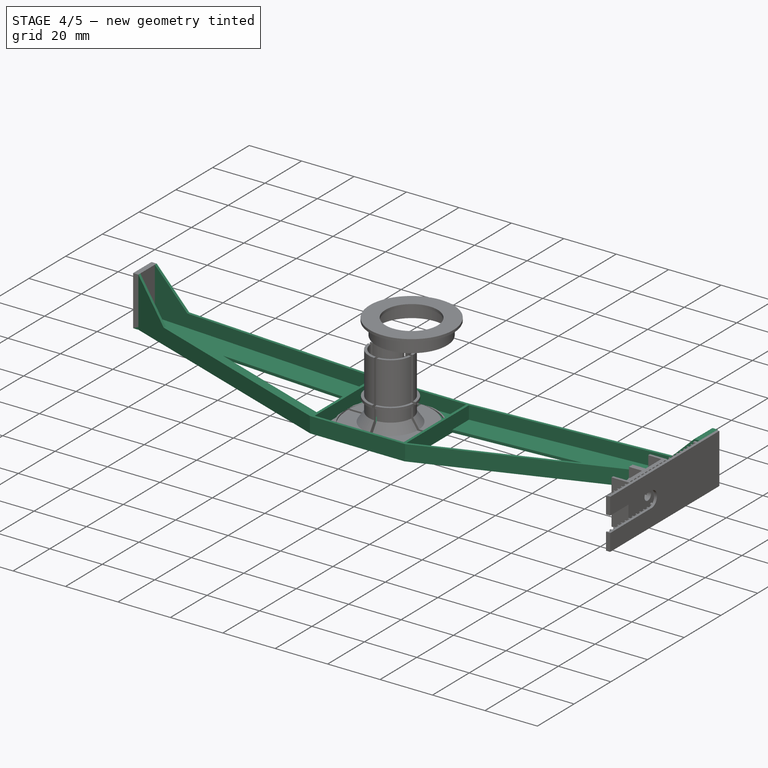
[diagram: stage 4 of 5 — iso view after this stage's code; geometry added in this stage tinted green]
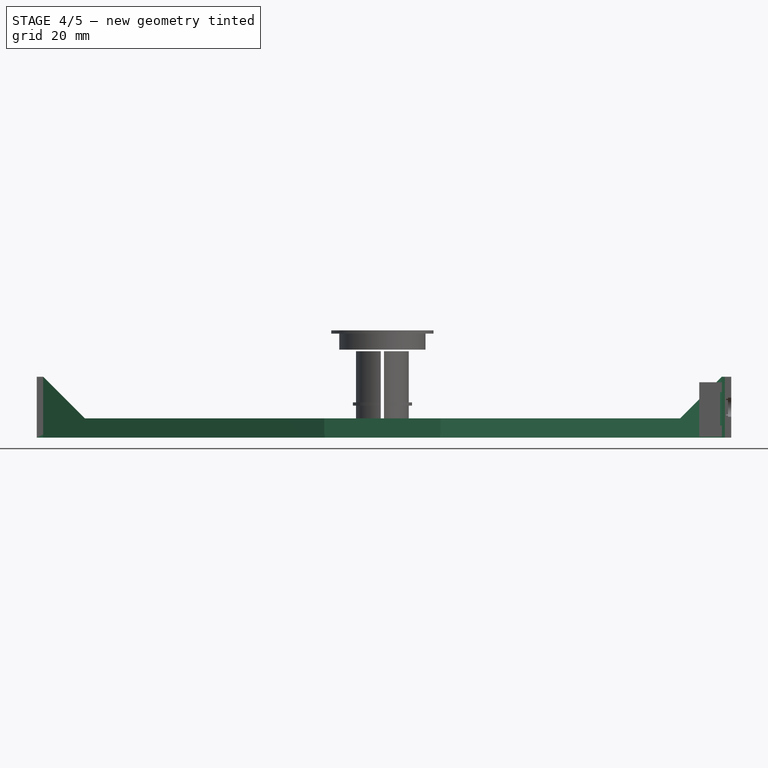
[diagram: stage 4 of 5 — front view after this stage's code; geometry added in this stage tinted green]
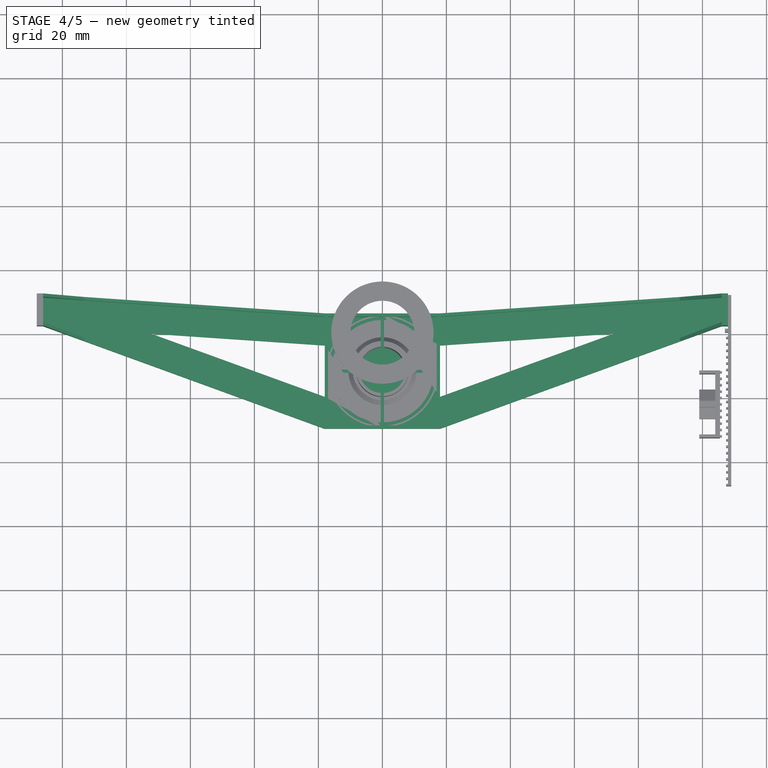
[diagram: stage 4 of 5 — top view after this stage's code; geometry added in this stage tinted green]
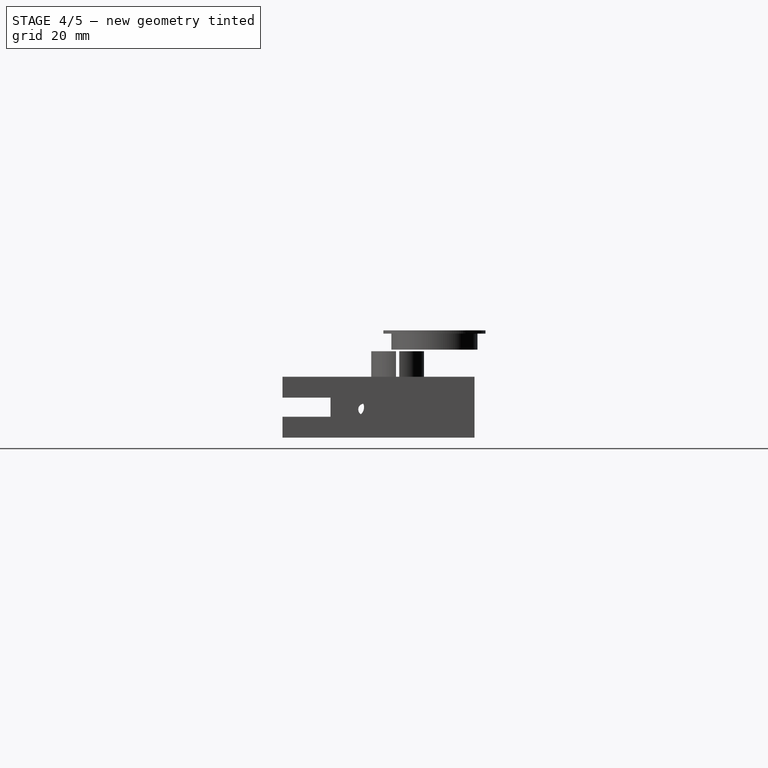
[diagram: stage 4 of 5 — right view after this stage's code; geometry added in this stage tinted green]
FEATURE [Sketcher::SketchObject] Sketch019
  FullyConstrained = true
  Placement = pos=(0,0,-26.5) rot=(0,0,1;0rad)
  sketch-geometry (11):
    g0: LineSegment StartX=0 StartY=-29.5 StartZ=0 EndX=-18 EndY=-29.5 EndZ=0
    g1: LineSegment StartX=-108 StartY=2.5 StartZ=0 EndX=-108 EndY=12.5 EndZ=0
    g2: LineSegment StartX=-72.1538 StartY=0.192308 StartZ=0 EndX=-18 EndY=-3.5 EndZ=0
    g3: LineSegment StartX=-18 StartY=-3.5 StartZ=0 EndX=-18 EndY=-19.5 EndZ=0
    g4: LineSegment StartX=-18 StartY=-19.5 StartZ=0 EndX=-72.1538 EndY=0.192308 EndZ=0
    g5: LineSegment StartX=0 StartY=6.5 StartZ=0 EndX=0 EndY=-29.5 EndZ=0
    g6: LineSegment StartX=-18 StartY=-29.5 StartZ=0 EndX=-106 EndY=2.5 EndZ=0
    g7: LineSegment StartX=-106 StartY=2.5 StartZ=0 EndX=-108 EndY=2.5 EndZ=0
    g8: LineSegment StartX=0 StartY=6.5 StartZ=0 EndX=-18 EndY=6.5 EndZ=0
    g9: LineSegment StartX=-18 StartY=6.5 StartZ=0 EndX=-106 EndY=12.5 EndZ=0
    g10: LineSegment StartX=-106 StartY=12.5 StartZ=0 EndX=-108 EndY=12.5 EndZ=0
  constraints (33):
    c: Horizontal(g0)
    c: Vertical(g1)
    c: Coincident(g2,g3)
    c: Vertical(g3)
    c: DistanceY(g1,g1) = 10
    c: DistanceX(g1) = -108
    c: Vertical(g3,g0)
    c: Coincident(g4,g3)
    c: Coincident(g4,g2)
    c: DistanceY(g0,g3) = 10
    c: PointOnObject(g5,g-2)
    c: Coincident(g5,g0)
    c: Vertical(g5)
    c: DistanceY(g0) = -29.5
    c: DistanceX(g2) = -18
    c: Coincident(g0,g6)
    c: Coincident(g6,g7)
    c: Coincident(g7,g1)
    c: Horizontal(g7)
    c: DistanceX(g7,g7) = 2
    c: Parallel(g6,g4)
    c: DistanceY(g1) = 12.5
    c: DistanceY(g5) = 6.5
    c: Coincident(g5,g8)
    c: Horizontal(g8)
    c: Coincident(g8,g9)
    c: Coincident(g9,g10)
    c: Coincident(g10,g1)
    c: Horizontal(g10)
    c: Vertical(g9,g6)
    c: Vertical(g8,g2)
    c: DistanceY(g2,g8) = 10
    c: Parallel(g2,g9)
FEATURE [Part::Extrusion] Extrude015
  Base = -> Sketch019
  Dir = (0,0,1)
  DirMode = 2
  FaceMakerClass = Part::FaceMakerBullseye
  LengthFwd = 1
  LengthRev = 0
  Solid = true
  Symmetric = false
FEATURE [Sketcher::SketchObject] Sketch020
  FullyConstrained = true
  Placement = pos=(0,0,-25.5) rot=(0,0,1;0rad)
  sketch-geometry (14):
    g0: LineSegment StartX=0 StartY=6.5 StartZ=0 EndX=0 EndY=5.5 EndZ=0
    g1: LineSegment StartX=-106 StartY=11.5 StartZ=0 EndX=-106 EndY=12.5 EndZ=0
    g2: LineSegment StartX=-18 StartY=-28.5 StartZ=0 EndX=-106 EndY=3.56431 EndZ=0
    g3: LineSegment StartX=-106 StartY=3.56431 StartZ=0 EndX=-106 EndY=2.5 EndZ=0
    g4: LineSegment StartX=-106 StartY=2.5 StartZ=0 EndX=-18.1765 EndY=-29.5 EndZ=0
    g5: LineSegment StartX=-18.1765 StartY=-29.5 StartZ=0 EndX=0 EndY=-29.5 EndZ=0
    g6: LineSegment StartX=0 StartY=-29.5 StartZ=0 EndX=0 EndY=-28.5 EndZ=0
    g7: LineSegment StartX=-18 StartY=5.5 StartZ=0 EndX=-18 EndY=-28.5 EndZ=0
    g8: LineSegment StartX=0 StartY=5.5 StartZ=0 EndX=-17 EndY=5.5 EndZ=0
    g9: LineSegment StartX=-17 StartY=5.5 StartZ=0 EndX=-17 EndY=-28.5 EndZ=0
    g10: LineSegment StartX=-17 StartY=-28.5 StartZ=0 EndX=0 EndY=-28.5 EndZ=0
    g11: LineSegment StartX=0 StartY=6.5 StartZ=0 EndX=-18 EndY=6.5 EndZ=0
    g12: LineSegment StartX=-18 StartY=6.5 StartZ=0 EndX=-106 EndY=12.5 EndZ=0
    g13: LineSegment StartX=-106 StartY=11.5 StartZ=0 EndX=-18 EndY=5.5 EndZ=0
  constraints (42):
    c: PointOnObject(g0,g-2)
    c: Vertical(g0)
    c: Vertical(g1)
    c: DistanceY(g0,g0) = 1
    c: DistanceY(g0) = 6.5
    c: PointOnObject(g6,g-2)
    c: Coincident(g2,g3)
    c: Vertical(g3)
    c: Coincident(g3,g4)
    c: Coincident(g4,g5)
    c: Horizontal(g5)
    c: Coincident(g5,g6)
    c: Vertical(g6)
    c: Coincident(g7,g2)
    c: Vertical(g7)
    c: Coincident(g0,g8)
    c: Horizontal(g8)
    c: Coincident(g8,g9)
    c: Vertical(g9)
    c: Coincident(g9,g10)
    c: Coincident(g10,g6)
    c: Horizontal(g10)
    c: Distance(g2,g4) = 1
    c: DistanceY(g6,g6) = 1
    c: DistanceY(g5) = -29.5
    c: Horizontal(g8,g7)
    c: DistanceX(g9) = -17
    c: DistanceX(g2,g9) = 1
    c: DistanceX(g1) = -106
    c: Vertical(g1,g2)
    c: Parallel(g4,g2)
    c: Horizontal(g9,g2)
    c: DistanceY(g3,g1) = 10
    c: DistanceY(g1) = 12.5
    c: DistanceY(g1,g1) = 1
    c: Coincident(g0,g11)
    c: Horizontal(g11)
    c: Coincident(g11,g12)
    c: Coincident(g1,g12)
    c: Coincident(g13,g1)
    c: Coincident(g13,g7)
    c: Vertical(g11,g7)
FEATURE [Part::Extrusion] Extrude016
  Base = -> Sketch020
  Dir = (0,0,1)
  DirMode = 2
  FaceMakerClass = Part::FaceMakerBullseye
  LengthFwd = 26.5
  LengthRev = 0
  Solid = true
  Symmetric = false
FEATURE [Sketcher::SketchObject] Sketch022
  FullyConstrained = true
  Placement = pos=(0,-30,0) rot=(1,0,0;1.5708rad)
  sketch-geometry (5):
    g0: LineSegment StartX=0 StartY=4 StartZ=0 EndX=-106 EndY=4 EndZ=0
    g1: LineSegment StartX=-106 StartY=4 StartZ=0 EndX=-106 EndY=-7.5 EndZ=0
    g2: LineSegment StartX=-93 StartY=-20.5 StartZ=0 EndX=0 EndY=-20.5 EndZ=0
    g3: LineSegment StartX=0 StartY=-20.5 StartZ=0 EndX=0 EndY=4 EndZ=0
    g4: LineSegment StartX=-106 StartY=-7.5 StartZ=0 EndX=-93 EndY=-20.5 EndZ=0
  constraints (15):
    c: Coincident(g0,g1)
    c: Coincident(g3,g0)
    c: Horizontal(g0)
    c: Horizontal(g2)
    c: Vertical(g1)
    c: Vertical(g3)
    c: DistanceY(g0) = 4
    c: DistanceX(g0) = -106
    c: DistanceY(g2,g0) = 24.5
    c: Coincident(g4,g1)
    c: Coincident(g4,g2)
    c: Angle(g4,g2,g2) = 0.785398
    c: DistanceY(g1) = -7.5
    c: Coincident(g2,g3)
    c: PointOnObject(g2,g-2)
FEATURE [Part::Extrusion] Extrude018
  Base = -> Sketch022
  Dir = (0,-1,-2e-16)
  DirMode = 2
  FaceMakerClass = Part::FaceMakerBullseye
  LengthFwd = 0
  LengthRev = 50
  Solid = true
  Symmetric = false
FEATURE [Part::Compound] Compound004
  Links = -> [Extrude016]
FEATURE [Part::Cut] Cut003
  Base = -> Compound004
  Tool = -> Extrude018
FEATURE [Part::Compound] Compound005
  Links = -> [Cut003,Extrude015,Extrude028]
FEATURE [PartDesign::FeatureBase] Clone009
  BaseFeature = -> Compound005
FEATURE [PartDesign::Body] Body009
  BaseFeature = -> Compound005
  Group = -> [Clone009]
  Origin = -> Origin009
  Tip = -> Clone009
FEATURE [Part::Mirroring] Part__Mirroring009  label="Body009 (Mirror #9)"
  Base = (-1.90735e-06,-21.5,-11.75)
  Normal = (1,0,-1.19209e-07)
  Source = -> Body009
FEATURE [Part::Compound] Compound008  label="base"
  Links = -> [Part__Mirroring009,Compound005,Extrude035]
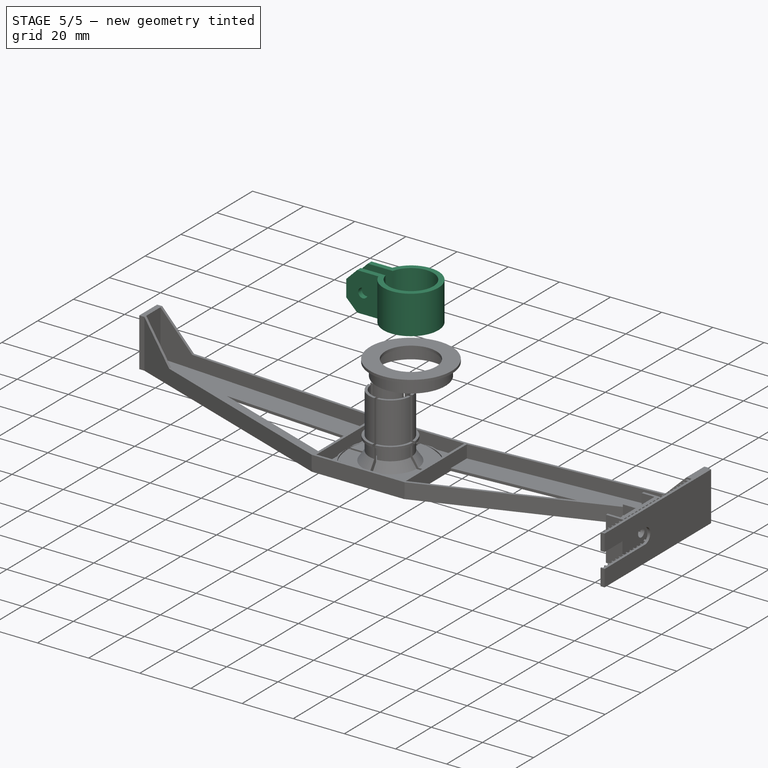
[diagram: stage 5 of 5 — iso view after this stage's code; geometry added in this stage tinted green]
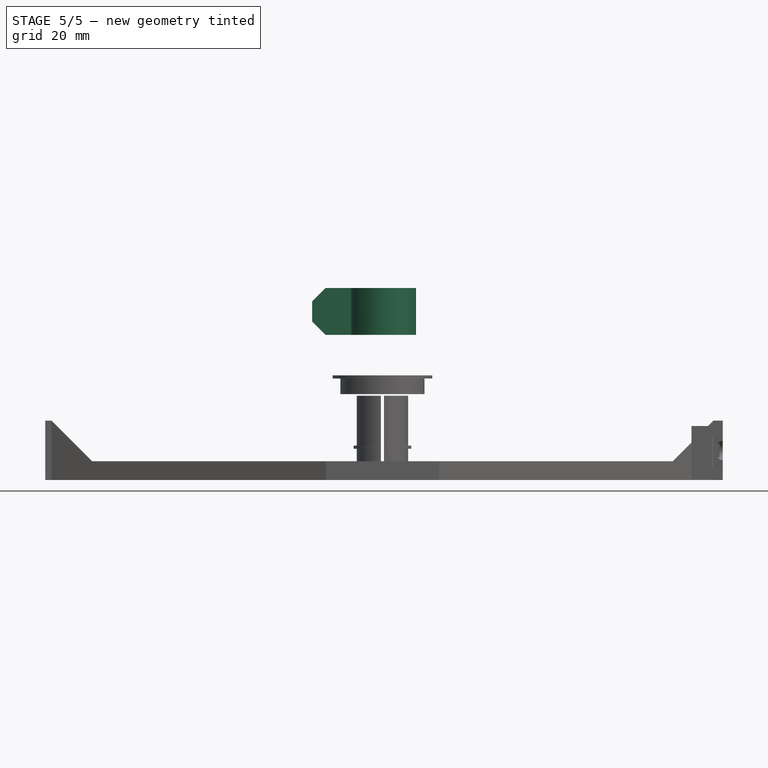
[diagram: stage 5 of 5 — front view after this stage's code; geometry added in this stage tinted green]
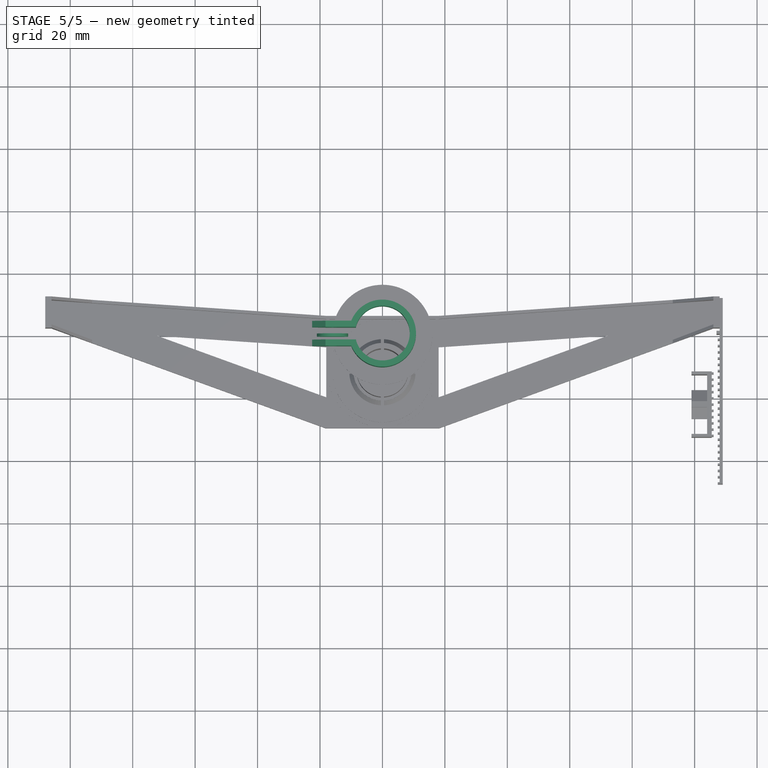
[diagram: stage 5 of 5 — top view after this stage's code; geometry added in this stage tinted green]
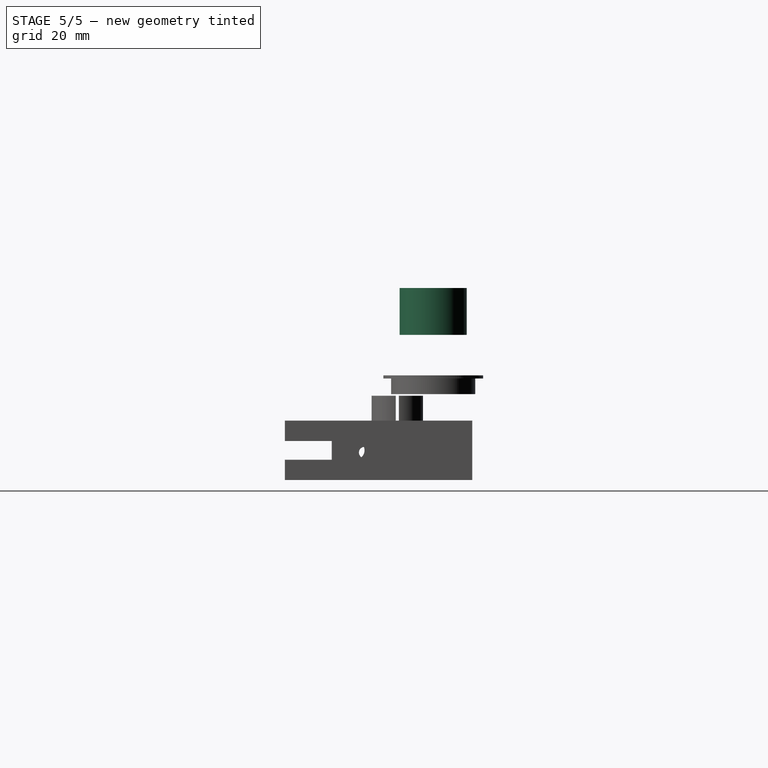
[diagram: stage 5 of 5 — right view after this stage's code; geometry added in this stage tinted green]
FEATURE [Spreadsheet::Sheet] Spreadsheet
  cells = A1=lunchbox screw r1; B1(lunchbox_screw_r1)=1.4; A2=4_40_r; B2(r_4_40)=1.8; A3=cf radius; B3(cf_radius)=7.25; A4=servo r; B4(servo_r)=16; A5=r_6_32; B5(r_6_32)=1.85; A6=r3_4_40; B6(r3_4_40)=3.8
FEATURE [Sketcher::SketchObject] Sketch015
  FullyConstrained = true
  Placement = pos=(0,0,50) rot=(0,0,1;0rad)
  expr: Constraints[2] = Spreadsheet.cf_radius + 1.5
  expr: Constraints[3] = Spreadsheet.cf_radius + 3.5
  sketch-geometry (6):
    g0: ArcOfCircle CenterX=0 CenterY=0 CenterZ=0 NormalX=0 NormalY=0 NormalZ=1 AngleXU=0 Radius=8.75 StartAngle=0 EndAngle=2.91098
    g1: ArcOfCircle CenterX=0 CenterY=0 CenterZ=0 NormalX=0 NormalY=0 NormalZ=1 AngleXU=0 Radius=10.75 StartAngle=0 EndAngle=2.76033
    g2: LineSegment StartX=8.75 StartY=0 StartZ=0 EndX=10.75 EndY=0 EndZ=0
    g3: LineSegment StartX=-8.51836 StartY=2 StartZ=0 EndX=-22.5184 EndY=2 EndZ=0
    g4: LineSegment StartX=-9.9781 StartY=4 StartZ=0 EndX=-22.5184 EndY=4 EndZ=0
    g5: LineSegment StartX=-22.5184 StartY=4 StartZ=0 EndX=-22.5184 EndY=2 EndZ=0
  constraints (18):
    c: Coincident(g0,g-1)
    c: Coincident(g1,g0)
    c: Radius(g0) = 8.75
    c: Radius(g1) = 10.75
    c: DistanceY(g0,g0) = 2
    c: PointOnObject(g0,g-1)
    c: Coincident(g2,g0)
    c: Coincident(g2,g1)
    c: Horizontal(g2)
    c: Coincident(g0,g3)
    c: Horizontal(g3)
    c: DistanceX(g3,g3) = 14
    c: Coincident(g4,g1)
    c: Horizontal(g4)
    c: Coincident(g5,g4)
    c: Coincident(g5,g3)
    c: Vertical(g5)
    c: DistanceY(g3,g4) = 2
FEATURE [Sketcher::SketchObject] Sketch016
  FullyConstrained = true
  Placement = pos=(0,0,0) rot=(1,0,0;1.5708rad)
  expr: Constraints[10] = Spreadsheet.r_6_32
  sketch-geometry (7):
    g0: LineSegment StartX=11.75 StartY=36 StartZ=0 EndX=11.75 EndY=19 EndZ=0
    g1: LineSegment StartX=11.75 StartY=19 StartZ=0 EndX=-17.25 EndY=19 EndZ=0
    g2: LineSegment StartX=-17.25 StartY=19 StartZ=0 EndX=-23.25 EndY=25 EndZ=0
    g3: LineSegment StartX=-23.25 StartY=25 StartZ=0 EndX=-23.25 EndY=30 EndZ=0
    g4: LineSegment StartX=-23.25 StartY=30 StartZ=0 EndX=-17.25 EndY=36 EndZ=0
    g5: LineSegment StartX=-17.25 StartY=36 StartZ=0 EndX=11.75 EndY=36 EndZ=0
    g6: Circle CenterX=-16 CenterY=27.4816 CenterZ=0 NormalX=0 NormalY=0 NormalZ=1 AngleXU=0 Radius=1.85
  constraints (21):
    c: Vertical(g0)
    c: Coincident(g0,g1)
    c: Horizontal(g1)
    c: Coincident(g1,g2)
    c: Coincident(g2,g3)
    c: Vertical(g3)
    c: Coincident(g3,g4)
    c: Coincident(g4,g5)
    c: Coincident(g5,g0)
    c: Horizontal(g5)
    c: Radius(g6) = 1.85
    c: DistanceX(g6) = -16
    c: DistanceY(g6) = 27.4816
    c: DistanceX(g1,g2) = -6
    c: DistanceY(g1,g2) = 6
    c: DistanceX(g4,g3) = -6
    c: DistanceY(g4,g3) = -6
    c: DistanceX(g0,g1) = -29
    c: DistanceY(g0,g1) = -17
    c: DistanceX(g0) = 11.75
    c: DistanceY(g0) = 36
FEATURE [Part::Cylinder] Cylinder006  label="washer"
  Angle = 360
  AttacherType = Attacher::AttachEngine3D
  Height = 1
  Placement = pos=(-16,-4e-15,27.5) rot=(1,0,0;1.5708rad)
  Radius = 5
FEATURE [Part::Extrusion] Extrude013
  Base = -> Sketch016
  Dir = (0,-1,2e-16)
  DirMode = 2
  FaceMakerClass = Part::FaceMakerBullseye
  LengthFwd = 0
  LengthRev = 12
  Solid = true
  Symmetric = false
FEATURE [Part::Extrusion] Extrude012
  Base = -> Sketch015
  Dir = (0,0,1)
  DirMode = 2
  FaceMakerClass = Part::FaceMakerBullseye
  LengthFwd = 15
  LengthRev = 0
  Placement = pos=(0,0,-30) rot=(0,0,1;0rad)
  Solid = true
  Symmetric = false
FEATURE [Part::Cylinder] Cylinder007  label="unprintable"
  Angle = 360
  AttacherType = Attacher::AttachEngine3D
  Height = 1
  Placement = pos=(-16,18,27.5) rot=(1,0,0;1.5708rad)
  Radius = 5
FEATURE [Part::MultiFuse] Fusion016
  Shapes = -> [Extrude012,Cylinder007]
FEATURE [Part::MultiCommon] Common001
  Shapes = -> [Fusion016,Extrude013]
FEATURE [PartDesign::FeatureBase] Clone007
  BaseFeature = -> Common001
FEATURE [PartDesign::Body] Body007
  BaseFeature = -> Common001
  Group = -> [Clone007]
  Origin = -> Origin007
  Tip = -> Clone007
FEATURE [Part::Mirroring] Part__Mirroring008  label="Body007 (Mirror #8)"
  Base = (0,0,0)
  Normal = (0,1,0)
  Source = -> Body007
FEATURE [Part::Compound] Compound003  label="collar"
  Links = -> [Common001,Part__Mirroring008]
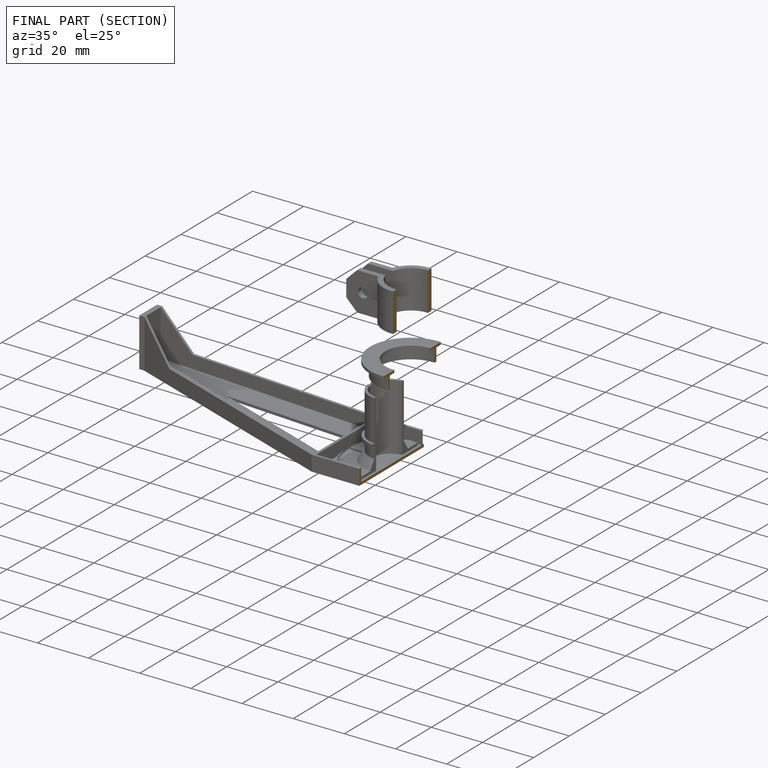
[diagram: finished part — half-section view (interior)]
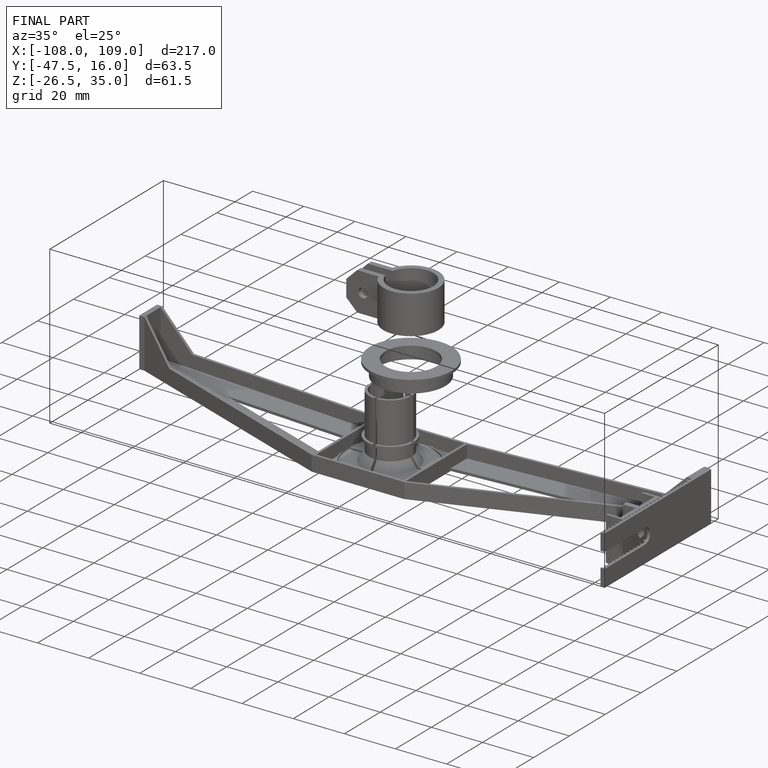
[diagram: finished part — iso view with bounding-box wireframe]
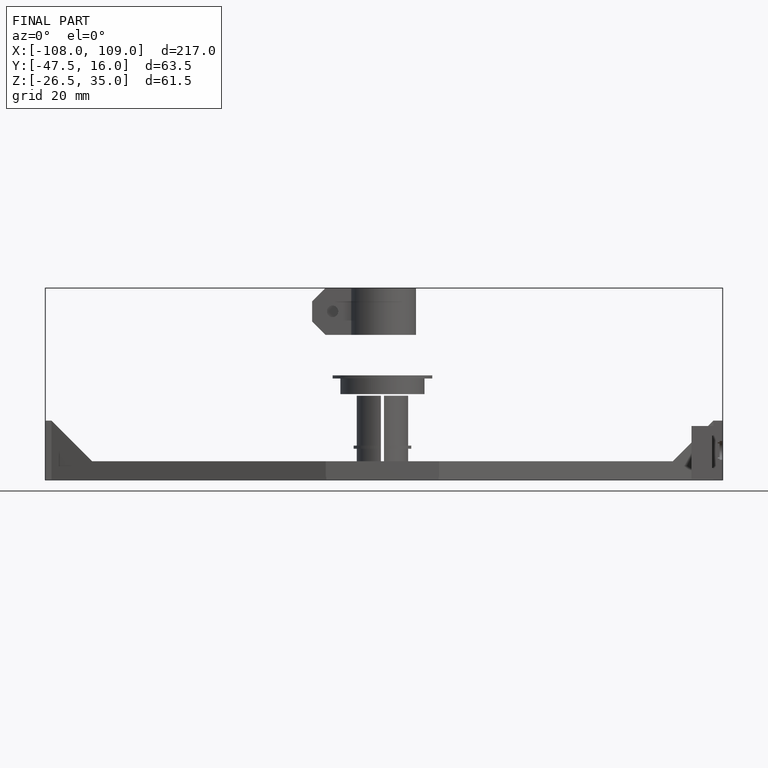
[diagram: finished part — front view with bounding-box wireframe]
